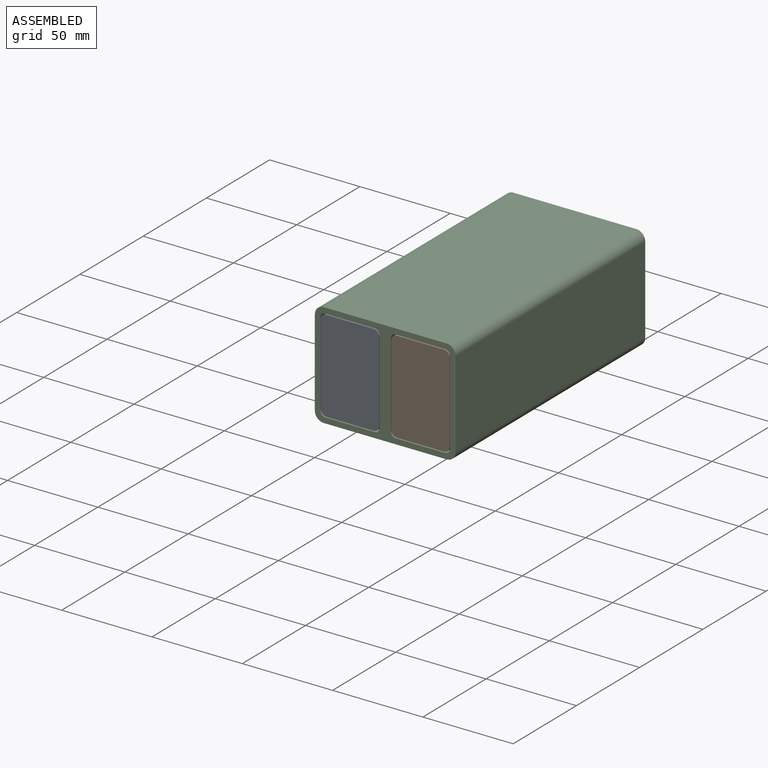
[diagram: assembled view]
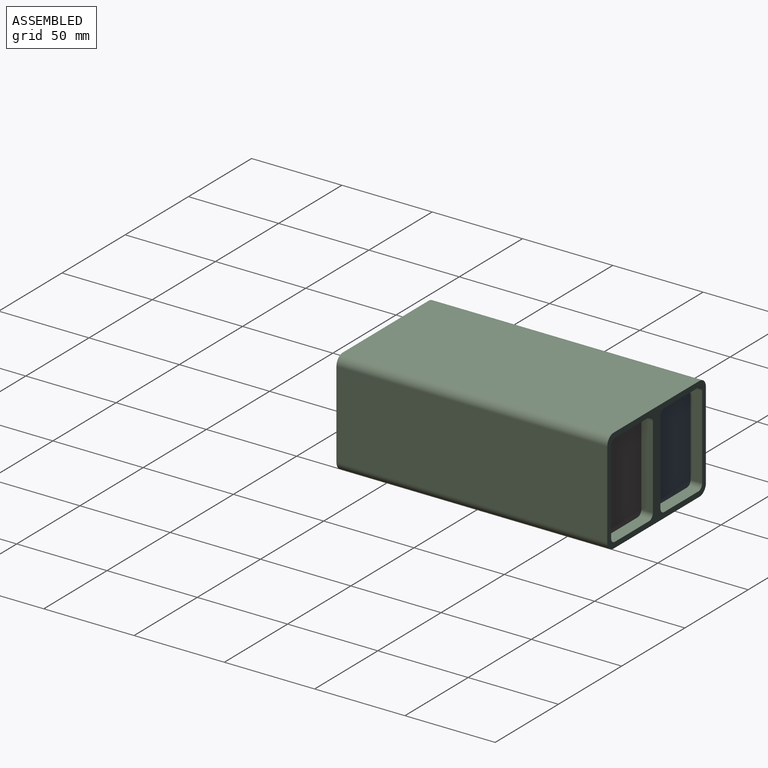
[diagram: assembled view, second angle]
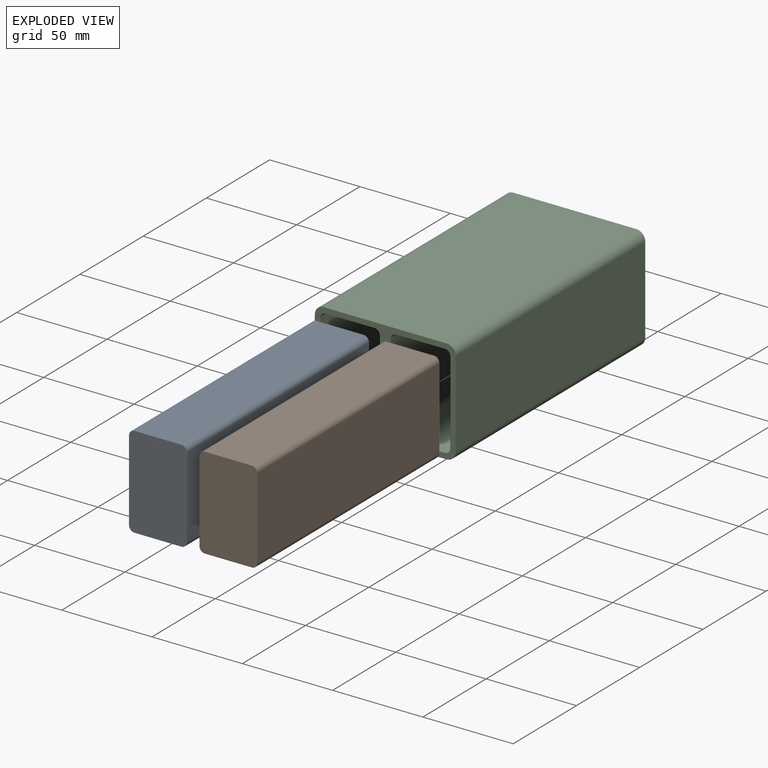
[diagram: exploded view]
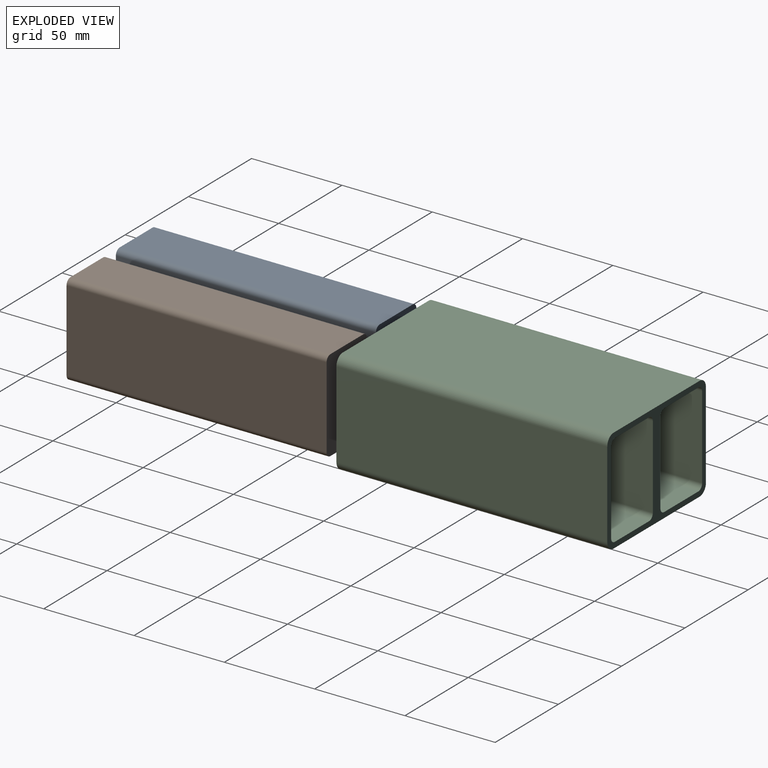
[diagram: exploded view, second angle]
ASSEMBLY  parts=3 mates=2
PART A: 10 faces, bbox 32x144x51 mm
  f0: plane 144x45mm, normal (1,0,0), area 6480mm2, adj f1,f3,f7,f9
  f1: plane 51x32mm, normal (0,1,0), area 1624.3mm2, adj f0,f2,f4,f5,f6,f7,f8,f9
  f2: plane 144x45mm, normal (-1,0,0), area 6480mm2, adj f1,f3,f6,f8
  f3: plane 51x32mm, normal (0,-1,0), area 1624.3mm2, adj f0,f2,f4,f5,f6,f7,f8,f9
  f4: plane 144x26mm, normal (0,0,1), area 3744mm2, adj f1,f3,f8,f9
  f5: plane 144x26mm, normal (0,0,-1), area 3744mm2, adj f1,f3,f6,f7
  f6: cylinder r=3mm len=144mm, axis (0,-1,0), area 678.6mm2, adj f1,f2,f3,f5
  f7: cylinder r=3mm len=144mm, axis (0,1,0), area 678.6mm2, adj f0,f1,f3,f5
  f8: cylinder r=3mm len=144mm, axis (0,1,0), area 678.6mm2, adj f1,f2,f3,f4
  f9: cylinder r=3mm len=144mm, axis (0,-1,0), area 678.6mm2, adj f0,f1,f3,f4
PART B: same geometry as A
PART C: 26 faces, bbox 78x150x58 mm
  f0: cylinder r=3mm len=150mm, axis (0,-1,0), area 706.9mm2, adj f1,f23,f24,f25
  f1: plane 150x27mm, normal (0,0,-1), area 4050mm2, adj f0,f2,f24,f25
  f2: cylinder r=3mm len=150mm, axis (0,-1,0), area 706.9mm2, adj f1,f3,f24,f25
  f3: plane 150x46mm, normal (-1,0,0), area 6900mm2, adj f2,f4,f24,f25
  f4: cylinder r=3mm len=150mm, axis (0,-1,0), area 706.9mm2, adj f3,f5,f24,f25
  f5: plane 150x27mm, normal (0,0,1), area 4050mm2, adj f4,f6,f24,f25
  f6: cylinder r=3mm len=150mm, axis (0,-1,0), area 706.9mm2, adj f5,f23,f24,f25
  f7: plane 150x68mm, normal (0,0,1), area 10200mm2, adj f8,f21,f24,f25
  f8: cylinder r=5mm len=150mm, axis (0,-1,0), area 1178.1mm2, adj f7,f9,f24,f25
  f9: plane 150x48mm, normal (-1,0,0), area 7200mm2, adj f8,f10,f24,f25
  f10: cylinder r=5mm len=150mm, axis (0,-1,0), area 1178.1mm2, adj f9,f11,f24,f25
  f11: plane 150x68mm, normal (0,0,-1), area 10200mm2, adj f10,f12,f24,f25
  f12: cylinder r=5mm len=150mm, axis (0,-1,0), area 1178.1mm2, adj f11,f13,f24,f25
  f13: plane 150x48mm, normal (1,0,0), area 7200mm2, adj f12,f21,f24,f25
  f14: plane 150x27mm, normal (0,0,-1), area 4050mm2, adj f15,f22,f24,f25
  f15: cylinder r=3mm len=150mm, axis (0,-1,0), area 706.9mm2, adj f14,f16,f24,f25
  f16: plane 150x46mm, normal (-1,0,0), area 6900mm2, adj f15,f17,f24,f25
  f17: cylinder r=3mm len=150mm, axis (0,-1,0), area 706.9mm2, adj f16,f18,f24,f25
  f18: plane 150x27mm, normal (0,0,1), area 4050mm2, adj f17,f19,f24,f25
  f19: cylinder r=3mm len=150mm, axis (0,-1,0), area 706.9mm2, adj f18,f20,f24,f25
  f20: plane 150x46mm, normal (1,0,0), area 6900mm2, adj f19,f22,f24,f25
  f21: cylinder r=5mm len=150mm, axis (0,-1,0), area 1178.1mm2, adj f7,f13,f24,f25
  f22: cylinder r=3mm len=150mm, axis (0,-1,0), area 706.9mm2, adj f14,f20,f24,f25
  f23: plane 150x46mm, normal (1,0,0), area 6900mm2, adj f0,f6,f24,f25
  f24: plane 78x58mm, normal (0,1,0), area 1086mm2, adj f0,f1,f2,f3,f4,f5,f6,f7
  f25: plane 78x58mm, normal (0,-1,0), area 1086mm2, adj f0,f1,f2,f3,f4,f5,f6,f7
PLACE A at identity
PLACE B t=(39,0,0)mm
PLACE C at identity
MATE fastened A.f3 <-> C.f25  axis (0,-1,0) through (0,-72,25.5)mm
MATE fastened B.f3 <-> C.f25  axis (0,-1,0) through (39,-72,25.5)mm
